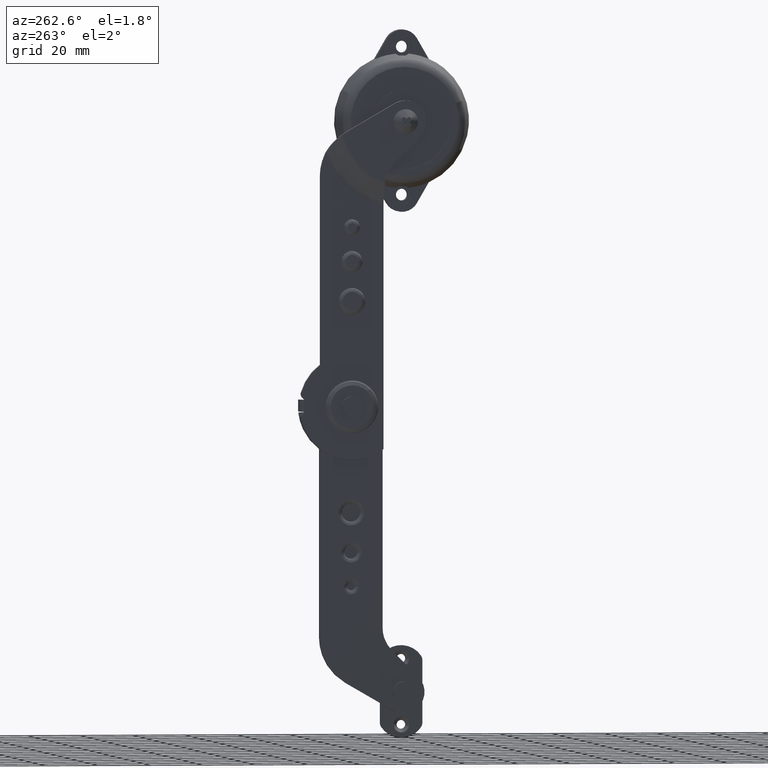
[diagram: clean part render]
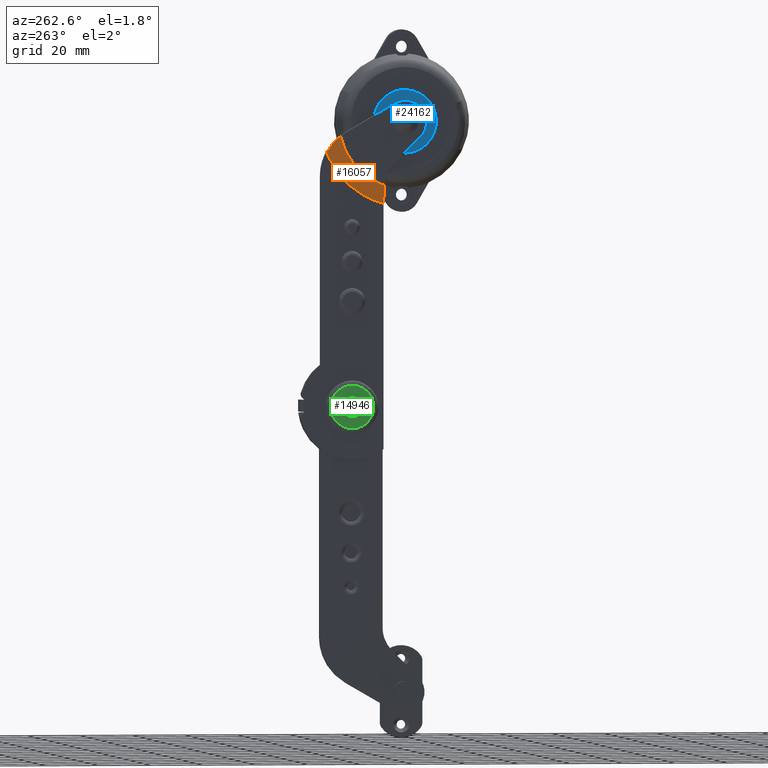
[diagram: same view with three faces highlighted in distinct colors, each labeled with its STEP entity id]
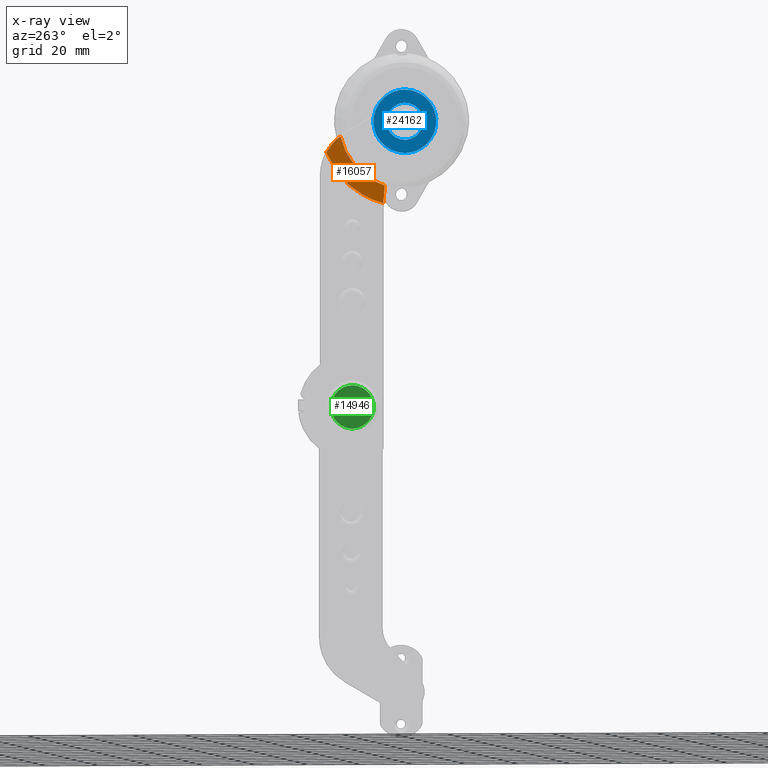
[diagram: x-ray of the same camera — body ghosted, the three highlighted faces saturated]
A machine part, auxiliary view with three faces highlighted in distinct colors.
The next image is the same camera in x-ray (body ghosted, the three faces saturated) — at least one of them is partly hidden behind the body in this view.
Their STEP definitions:

[orange] entity #16057 — the highlighted face is a freeform B-spline surface patch.
#15532=CARTESIAN_POINT('',(-5.736486284248669,4.863128088838000,102.514111724720190));
#15533=VERTEX_POINT('',#15532);
#15547=CARTESIAN_POINT('',(-5.736486284248739,-12.000487781645480,83.828158680001295));
#15548=VERTEX_POINT('',#15547);
#15549=CARTESIAN_POINT('',(-5.736486284248650,4.863128088838022,102.514111724720190));
#15550=CARTESIAN_POINT('',(-5.736486284248650,1.743809319493125,88.376743586616570));
#15551=CARTESIAN_POINT('',(-5.736486284248650,-12.000487781645480,83.828158680001295));
#15559=(BOUNDED_CURVE()B_SPLINE_CURVE(2,(#15549,#15550,#15551),.UNSPECIFIED.,.F.,.U.)CURVE()GEOMETRIC_REPRESENTATION_ITEM()QUASI_UNIFORM_CURVE()RATIONAL_B_SPLINE_CURVE((1.0,0.869297465460706,1.0))REPRESENTATION_ITEM(''));
#15560=EDGE_CURVE('',#15533,#15548,#15559,.T.);
#15692=CARTESIAN_POINT('',(-5.677690264437961,-12.0,83.719962000000095));
#15693=VERTEX_POINT('',#15692);
#15699=CARTESIAN_POINT('',(-1.999999999999895,-11.999999999999600,77.016133230340614));
#15700=VERTEX_POINT('',#15699);
#15701=CARTESIAN_POINT('',(-5.677690264437961,-12.0,83.719962000000095));
#15702=CARTESIAN_POINT('',(-4.461948262280271,-11.999999999999600,81.479902104427453));
#15703=CARTESIAN_POINT('',(-3.233967052708433,-11.999999999999609,79.246395691298105));
#15704=CARTESIAN_POINT('',(-1.999999999999893,-11.999999999999609,77.016133230340628));
#15705=QUASI_UNIFORM_CURVE('',3,(#15701,#15702,#15703,#15704),.UNSPECIFIED.,.F.,.U.);
#15706=EDGE_CURVE('',#15693,#15700,#15705,.T.);
#15730=CARTESIAN_POINT('',(-5.677690264437961,-12.0,83.719962000000095));
#15731=CARTESIAN_POINT('',(-5.697271404937943,-11.999999999999989,83.756041141351744));
#15732=CARTESIAN_POINT('',(-5.716870014381894,-12.000162710020939,83.792106733380848));
#15733=CARTESIAN_POINT('',(-5.736486284248731,-12.000487781645591,83.828158680001295));
#15734=QUASI_UNIFORM_CURVE('',3,(#15730,#15731,#15732,#15733),.UNSPECIFIED.,.F.,.U.);
#15735=EDGE_CURVE('',#15693,#15548,#15734,.T.);
#15946=CARTESIAN_POINT('',(-1.999999999999825,9.795297129198499,96.327799308493312));
#15947=VERTEX_POINT('',#15946);
#15961=CARTESIAN_POINT('',(-1.999999999999827,9.795297129198467,96.327799308493269));
#15962=CARTESIAN_POINT('',(-2.292714323731850,9.483363388380450,96.935897457616363));
#15963=CARTESIAN_POINT('',(-2.589181289130669,9.144610856385798,97.519735497039520));
#15964=CARTESIAN_POINT('',(-3.190899492959475,8.417368433482308,98.641299036198546));
#15965=CARTESIAN_POINT('',(-3.496148150604005,8.028864882781731,99.179014937678133));
#15966=CARTESIAN_POINT('',(-4.116845547879970,7.204470162349771,100.209388527240800));
#15967=CARTESIAN_POINT('',(-4.432291318735617,6.768572400459301,100.702042641400500));
#15968=CARTESIAN_POINT('',(-5.075022276520461,5.850527813168181,101.642218165126100));
#15969=CARTESIAN_POINT('',(-5.402303590090484,5.368379475857493,102.089740715282800));
#15970=CARTESIAN_POINT('',(-5.736486284248679,4.863128088837949,102.514111724720100));
#15971=B_SPLINE_CURVE_WITH_KNOTS('',3,(#15961,#15962,#15963,#15964,#15965,#15966,#15967,#15968,#15969,#15970),.UNSPECIFIED.,.F.,.U.,(4,2,2,2,4),(0.0,0.250000000000000,0.500000000000000,0.750000000000000,1.0),.UNSPECIFIED.);
#15972=EDGE_CURVE('',#15947,#15533,#15971,.T.);
#16024=CARTESIAN_POINT('',(-5.829898441354890,4.841894014696131,103.219539752954110));
#16025=CARTESIAN_POINT('',(-1.904252538965806,11.588000944691890,101.921349849153300));
#16026=CARTESIAN_POINT('',(-5.829898441354954,1.640728462722296,86.584527378409064));
#16027=CARTESIAN_POINT('',(-1.904252538965885,7.517521438578352,80.768905261344031));
#16028=CARTESIAN_POINT('',(-5.829898441354969,-14.959879356122794,83.209484025012230));
#16029=CARTESIAN_POINT('',(-1.904252538965903,-13.591175633952629,76.477329402739741));
#16037=(BOUNDED_SURFACE()B_SPLINE_SURFACE(1,2,((#16024,#16026,#16028),(#16025,#16027,#16029)),.UNSPECIFIED.,.F.,.F.,.U.)B_SPLINE_SURFACE_WITH_KNOTS((2,2),(3,3),(0.0,7.912392273403238),(0.0,39.102397179111193),.UNSPECIFIED.)GEOMETRIC_REPRESENTATION_ITEM()RATIONAL_B_SPLINE_SURFACE(((1.0,0.830062819234507,0.997961803269860),(1.0,0.830062819234507,0.997961803269860)))REPRESENTATION_ITEM('')SURFACE());
#16038=ORIENTED_EDGE('',*,*,#15972,.F.);
#16039=CARTESIAN_POINT('',(-1.999999999999780,9.795297129198490,96.327799308493312));
#16040=CARTESIAN_POINT('',(-1.999999999999780,3.831337079326949,81.103766887435711));
#16041=CARTESIAN_POINT('',(-1.999999999999780,-11.999999999999600,77.016133230340628));
#16049=(BOUNDED_CURVE()B_SPLINE_CURVE(2,(#16039,#16040,#16041),.UNSPECIFIED.,.F.,.U.)CURVE()GEOMETRIC_REPRESENTATION_ITEM()QUASI_UNIFORM_CURVE()RATIONAL_B_SPLINE_CURVE((1.0,0.890491297027661,1.0))REPRESENTATION_ITEM(''));
#16050=EDGE_CURVE('',#15947,#15700,#16049,.T.);
#16051=ORIENTED_EDGE('',*,*,#16050,.T.);
#16052=ORIENTED_EDGE('',*,*,#15706,.F.);
#16053=ORIENTED_EDGE('',*,*,#15735,.T.);
#16054=ORIENTED_EDGE('',*,*,#15560,.F.);
#16055=EDGE_LOOP('',(#16038,#16051,#16052,#16053,#16054));
#16056=FACE_OUTER_BOUND('',#16055,.T.);
#16057=ADVANCED_FACE('',(#16056),#16037,.T.);

[blue] entity #24162 — the highlighted face is a freeform B-spline surface patch.
#21796=CARTESIAN_POINT('',(-3.199999999999581,-8.036991995251439,107.058490850643200));
#21797=VERTEX_POINT('',#21796);
#21803=CARTESIAN_POINT('',(-3.199999999999581,-19.999999999999449,119.999999999999500));
#21804=VERTEX_POINT('',#21803);
#21805=CARTESIAN_POINT('',(-3.199999999999580,-8.036991995251420,107.058490850643250));
#21806=CARTESIAN_POINT('',(-3.199999999999581,-7.999999999999950,107.528518715595200));
#21807=CARTESIAN_POINT('',(-3.199999999999581,-7.999999999999950,108.0));
#21808=CARTESIAN_POINT('',(-3.199999999999580,-7.999999999999952,119.999999999999490));
#21809=CARTESIAN_POINT('',(-3.199999999999581,-19.999999999999449,119.999999999999500));
#21817=(BOUNDED_CURVE()B_SPLINE_CURVE(2,(#21805,#21806,#21807,#21808,#21809),.UNSPECIFIED.,.F.,.U.)B_SPLINE_CURVE_WITH_KNOTS((3,2,3),(0.736331300623844,0.750000000000000,1.0),.UNSPECIFIED.)CURVE()GEOMETRIC_REPRESENTATION_ITEM()RATIONAL_B_SPLINE_CURVE((0.969723356153195,0.983986122570897,1.0,0.707106781186548,1.0))REPRESENTATION_ITEM(''));
#21818=EDGE_CURVE('',#21797,#21804,#21817,.T.);
#21820=CARTESIAN_POINT('',(-3.199999999999581,-31.963008004747419,108.941509149357800));
#21821=VERTEX_POINT('',#21820);
#21822=CARTESIAN_POINT('',(-3.199999999999581,-19.999999999999449,119.999999999999500));
#21823=CARTESIAN_POINT('',(-3.199999999999581,-31.092685899317406,119.999999999999500));
#21824=CARTESIAN_POINT('',(-3.199999999999580,-31.963008004747397,108.941509149357730));
#21832=(BOUNDED_CURVE()B_SPLINE_CURVE(2,(#21822,#21823,#21824),.UNSPECIFIED.,.F.,.U.)B_SPLINE_CURVE_WITH_KNOTS((3,3),(0.0,0.236331300623830),.UNSPECIFIED.)CURVE()GEOMETRIC_REPRESENTATION_ITEM()RATIONAL_B_SPLINE_CURVE((1.0,0.723120658615667,0.969723356153166))REPRESENTATION_ITEM(''));
#21833=EDGE_CURVE('',#21804,#21821,#21832,.T.);
#21879=CARTESIAN_POINT('',(-3.199999999999581,-19.999999999999449,96.000000000000497));
#21880=VERTEX_POINT('',#21879);
#21881=CARTESIAN_POINT('',(-3.199999999999581,-31.963008004747405,108.941509149357780));
#21882=CARTESIAN_POINT('',(-3.199999999999581,-31.999999999998945,108.471481284405260));
#21883=CARTESIAN_POINT('',(-3.199999999999581,-31.999999999998948,108.0));
#21884=CARTESIAN_POINT('',(-3.199999999999580,-31.999999999998948,96.000000000000483));
#21885=CARTESIAN_POINT('',(-3.199999999999581,-19.999999999999449,96.000000000000497));
#21893=(BOUNDED_CURVE()B_SPLINE_CURVE(2,(#21881,#21882,#21883,#21884,#21885),.UNSPECIFIED.,.F.,.U.)B_SPLINE_CURVE_WITH_KNOTS((3,2,3),(0.236331300623830,0.250000000000000,0.500000000000000),.UNSPECIFIED.)CURVE()GEOMETRIC_REPRESENTATION_ITEM()RATIONAL_B_SPLINE_CURVE((0.969723356153165,0.983986122570881,1.0,0.707106781186548,1.0))REPRESENTATION_ITEM(''));
#21894=EDGE_CURVE('',#21821,#21880,#21893,.T.);
#21896=CARTESIAN_POINT('',(-3.199999999999581,-19.999999999999449,96.000000000000497));
#21897=CARTESIAN_POINT('',(-3.199999999999580,-8.907314100680583,96.000000000000497));
#21898=CARTESIAN_POINT('',(-3.199999999999580,-8.036991995251418,107.058490850643280));
#21906=(BOUNDED_CURVE()B_SPLINE_CURVE(2,(#21896,#21897,#21898),.UNSPECIFIED.,.F.,.U.)B_SPLINE_CURVE_WITH_KNOTS((3,3),(0.500000000000000,0.736331300623844),.UNSPECIFIED.)CURVE()GEOMETRIC_REPRESENTATION_ITEM()RATIONAL_B_SPLINE_CURVE((1.0,0.723120658615650,0.969723356153195))REPRESENTATION_ITEM(''));
#21907=EDGE_CURVE('',#21880,#21797,#21906,.T.);
#22160=CARTESIAN_POINT('',(-3.199999999999601,-13.000266538561711,108.061085749794100));
#22161=VERTEX_POINT('',#22160);
#22167=CARTESIAN_POINT('',(-3.199999999999601,-19.999999999999400,101.000000000000100));
#22168=VERTEX_POINT('',#22167);
#22169=CARTESIAN_POINT('',(-3.199999999999601,-19.999999999999400,101.000000000000100));
#22170=CARTESIAN_POINT('',(-3.199999999999600,-12.999999999999519,101.000000000000130));
#22171=CARTESIAN_POINT('',(-3.199999999999601,-12.999999999999520,108.0));
#22172=CARTESIAN_POINT('',(-3.199999999999601,-12.999999999999522,108.030543456397690));
#22173=CARTESIAN_POINT('',(-3.199999999999601,-13.000266538561709,108.061085749794150));
#22181=(BOUNDED_CURVE()B_SPLINE_CURVE(2,(#22169,#22170,#22171,#22172,#22173),.UNSPECIFIED.,.F.,.U.)B_SPLINE_CURVE_WITH_KNOTS((3,2,3),(0.500000000000000,0.750000000000000,0.751539894367839),.UNSPECIFIED.)CURVE()GEOMETRIC_REPRESENTATION_ITEM()RATIONAL_B_SPLINE_CURVE((1.0,0.707106781186547,1.0,0.998195901527884,0.996414028024377))REPRESENTATION_ITEM(''));
#22182=EDGE_CURVE('',#22168,#22161,#22181,.T.);
#22184=CARTESIAN_POINT('',(-3.199999999999601,-26.999733461437089,107.938914250205900));
#22185=VERTEX_POINT('',#22184);
#22186=CARTESIAN_POINT('',(-3.199999999999600,-26.999733461437092,107.938914250205810));
#22187=CARTESIAN_POINT('',(-3.199999999999601,-26.939178472869852,101.000000000000130));
#22188=CARTESIAN_POINT('',(-3.199999999999601,-19.999999999999400,101.000000000000100));
#22196=(BOUNDED_CURVE()B_SPLINE_CURVE(2,(#22186,#22187,#22188),.UNSPECIFIED.,.F.,.U.)B_SPLINE_CURVE_WITH_KNOTS((3,3),(0.251539894367840,0.500000000000000),.UNSPECIFIED.)CURVE()GEOMETRIC_REPRESENTATION_ITEM()RATIONAL_B_SPLINE_CURVE((0.996414028024376,0.708910879658664,1.0))REPRESENTATION_ITEM(''));
#22197=EDGE_CURVE('',#22185,#22168,#22196,.T.);
#22243=CARTESIAN_POINT('',(-3.199999999999601,-19.999999999999400,114.999999999999900));
#22244=VERTEX_POINT('',#22243);
#22245=CARTESIAN_POINT('',(-3.199999999999601,-19.999999999999400,114.999999999999900));
#22246=CARTESIAN_POINT('',(-3.199999999999600,-26.999999999999289,114.999999999999900));
#22247=CARTESIAN_POINT('',(-3.199999999999601,-26.999999999999279,108.0));
#22248=CARTESIAN_POINT('',(-3.199999999999601,-26.999999999999286,107.969456543602310));
#22249=CARTESIAN_POINT('',(-3.199999999999600,-26.999733461437092,107.938914250205810));
#22257=(BOUNDED_CURVE()B_SPLINE_CURVE(2,(#22245,#22246,#22247,#22248,#22249),.UNSPECIFIED.,.F.,.U.)B_SPLINE_CURVE_WITH_KNOTS((3,2,3),(0.0,0.250000000000000,0.251539894367840),.UNSPECIFIED.)CURVE()GEOMETRIC_REPRESENTATION_ITEM()RATIONAL_B_SPLINE_CURVE((1.0,0.707106781186547,1.0,0.998195901527883,0.996414028024376))REPRESENTATION_ITEM(''));
#22258=EDGE_CURVE('',#22244,#22185,#22257,.T.);
#22260=CARTESIAN_POINT('',(-3.199999999999601,-13.000266538561716,108.061085749794120));
#22261=CARTESIAN_POINT('',(-3.199999999999599,-13.060821527128923,114.999999999999890));
#22262=CARTESIAN_POINT('',(-3.199999999999601,-19.999999999999400,114.999999999999900));
#22270=(BOUNDED_CURVE()B_SPLINE_CURVE(2,(#22260,#22261,#22262),.UNSPECIFIED.,.F.,.U.)B_SPLINE_CURVE_WITH_KNOTS((3,3),(0.751539894367839,1.0),.UNSPECIFIED.)CURVE()GEOMETRIC_REPRESENTATION_ITEM()RATIONAL_B_SPLINE_CURVE((0.996414028024377,0.708910879658664,1.0))REPRESENTATION_ITEM(''));
#22271=EDGE_CURVE('',#22161,#22244,#22270,.T.);
#24145=CARTESIAN_POINT('',(-3.199999999999601,-6.804862741983384,94.801200046517195));
#24146=CARTESIAN_POINT('',(-3.199999999999601,-6.804862741983384,121.198800597212990));
#24147=CARTESIAN_POINT('',(-3.199999999999601,-33.195137687168952,94.801200046517195));
#24148=CARTESIAN_POINT('',(-3.199999999999601,-33.195137687168952,121.198800597212990));
#24149=B_SPLINE_SURFACE_WITH_KNOTS('',1,1,((#24145,#24147),(#24146,#24148)),.UNSPECIFIED.,.F.,.F.,.U.,(2,2),(2,2),(0.0,26.397600550695770),(0.0,26.390274945185570),.UNSPECIFIED.);
#24150=ORIENTED_EDGE('',*,*,#21818,.F.);
#24151=ORIENTED_EDGE('',*,*,#21907,.F.);
#24152=ORIENTED_EDGE('',*,*,#21894,.F.);
#24153=ORIENTED_EDGE('',*,*,#21833,.F.);
#24154=EDGE_LOOP('',(#24150,#24151,#24152,#24153));
#24155=FACE_OUTER_BOUND('',#24154,.T.);
#24156=ORIENTED_EDGE('',*,*,#22182,.T.);
#24157=ORIENTED_EDGE('',*,*,#22271,.T.);
#24158=ORIENTED_EDGE('',*,*,#22258,.T.);
#24159=ORIENTED_EDGE('',*,*,#22197,.T.);
#24160=EDGE_LOOP('',(#24156,#24157,#24158,#24159));
#24161=FACE_BOUND('',#24160,.T.);
#24162=ADVANCED_FACE('',(#24155,#24161),#24149,.F.);

[green] entity #14946 — the highlighted face is a freeform B-spline surface patch.
#12652=CARTESIAN_POINT('',(-3.0,2.549902903796574,-0.022252667475778));
#12653=VERTEX_POINT('',#12652);
#12659=CARTESIAN_POINT('',(-3.0,0.0,-2.549999999999705));
#12660=VERTEX_POINT('',#12659);
#12661=CARTESIAN_POINT('',(-3.0,0.0,-2.549999999999705));
#12662=CARTESIAN_POINT('',(-3.000000000000001,2.527843585078816,-2.549999999999705));
#12663=CARTESIAN_POINT('',(-3.000000000000000,2.549902903796574,-0.022252667475778));
#12671=(BOUNDED_CURVE()B_SPLINE_CURVE(2,(#12661,#12662,#12663),.UNSPECIFIED.,.F.,.U.)B_SPLINE_CURVE_WITH_KNOTS((3,3),(0.500000000000000,0.748460105529950),.UNSPECIFIED.)CURVE()GEOMETRIC_REPRESENTATION_ITEM()RATIONAL_B_SPLINE_CURVE((1.0,0.708910879778412,0.996414027787832))REPRESENTATION_ITEM(''));
#12672=EDGE_CURVE('',#12660,#12653,#12671,.T.);
#12674=CARTESIAN_POINT('',(-3.0,-2.549902903796574,0.022252667476368));
#12675=VERTEX_POINT('',#12674);
#12676=CARTESIAN_POINT('',(-3.000000000000000,-2.549902903796574,0.022252667476368));
#12677=CARTESIAN_POINT('',(-2.999999999999999,-2.549999999999999,0.011126545570750));
#12678=CARTESIAN_POINT('',(-3.0,-2.550000000000000,2.952824E-013));
#12679=CARTESIAN_POINT('',(-3.0,-2.549999999999999,-2.549999999999705));
#12680=CARTESIAN_POINT('',(-3.0,0.0,-2.549999999999705));
#12688=(BOUNDED_CURVE()B_SPLINE_CURVE(2,(#12676,#12677,#12678,#12679,#12680),.UNSPECIFIED.,.F.,.U.)B_SPLINE_CURVE_WITH_KNOTS((3,2,3),(0.248460105529950,0.250000000000000,0.500000000000000),.UNSPECIFIED.)CURVE()GEOMETRIC_REPRESENTATION_ITEM()RATIONAL_B_SPLINE_CURVE((0.996414027787832,0.998195901408136,1.0,0.707106781186548,1.0))REPRESENTATION_ITEM(''));
#12689=EDGE_CURVE('',#12675,#12660,#12688,.T.);
#12765=CARTESIAN_POINT('',(-3.0,0.0,2.550000000000296));
#12766=VERTEX_POINT('',#12765);
#12767=CARTESIAN_POINT('',(-3.0,0.0,2.550000000000296));
#12768=CARTESIAN_POINT('',(-3.000000000000001,-2.527843585078816,2.550000000000297));
#12769=CARTESIAN_POINT('',(-3.000000000000000,-2.549902903796574,0.022252667476368));
#12777=(BOUNDED_CURVE()B_SPLINE_CURVE(2,(#12767,#12768,#12769),.UNSPECIFIED.,.F.,.U.)B_SPLINE_CURVE_WITH_KNOTS((3,3),(0.0,0.248460105529950),.UNSPECIFIED.)CURVE()GEOMETRIC_REPRESENTATION_ITEM()RATIONAL_B_SPLINE_CURVE((1.0,0.708910879778412,0.996414027787832))REPRESENTATION_ITEM(''));
#12778=EDGE_CURVE('',#12766,#12675,#12777,.T.);
#12780=CARTESIAN_POINT('',(-3.000000000000000,2.549902903796574,-0.022252667475778));
#12781=CARTESIAN_POINT('',(-2.999999999999999,2.549999999999999,-0.011126545570159));
#12782=CARTESIAN_POINT('',(-3.0,2.550000000000000,2.952824E-013));
#12783=CARTESIAN_POINT('',(-3.0,2.549999999999999,2.550000000000295));
#12784=CARTESIAN_POINT('',(-3.0,0.0,2.550000000000296));
#12792=(BOUNDED_CURVE()B_SPLINE_CURVE(2,(#12780,#12781,#12782,#12783,#12784),.UNSPECIFIED.,.F.,.U.)B_SPLINE_CURVE_WITH_KNOTS((3,2,3),(0.748460105529950,0.750000000000000,1.0),.UNSPECIFIED.)CURVE()GEOMETRIC_REPRESENTATION_ITEM()RATIONAL_B_SPLINE_CURVE((0.996414027787832,0.998195901408136,1.0,0.707106781186548,1.0))REPRESENTATION_ITEM(''));
#12793=EDGE_CURVE('',#12653,#12766,#12792,.T.);
#14516=CARTESIAN_POINT('',(-3.000000000000024,5.668238560962764,-5.886057712507089));
#14517=VERTEX_POINT('',#14516);
#14531=CARTESIAN_POINT('',(-3.000000000000028,1.136868E-013,8.171572875253800));
#14532=VERTEX_POINT('',#14531);
#14533=CARTESIAN_POINT('',(-3.000000000000028,1.136868E-013,8.171572875253800));
#14534=CARTESIAN_POINT('',(-3.000000000000004,8.171572879732247,8.171572870603363));
#14535=CARTESIAN_POINT('',(-3.000000000000017,8.171572890838849,-0.000000016183834));
#14536=CARTESIAN_POINT('',(-3.000000000000023,8.171572895562477,-3.475361636821903));
#14537=CARTESIAN_POINT('',(-3.000000000000024,5.668238560962764,-5.886057712507088));
#14545=(BOUNDED_CURVE()B_SPLINE_CURVE(2,(#14533,#14534,#14535,#14536,#14537),.UNSPECIFIED.,.F.,.U.)B_SPLINE_CURVE_WITH_KNOTS((3,2,3),(0.0,0.250000000000000,0.377844262559069),.UNSPECIFIED.)CURVE()GEOMETRIC_REPRESENTATION_ITEM()RATIONAL_B_SPLINE_CURVE((1.0,0.707106781186548,1.0,0.850221129728968,0.853629213191781))REPRESENTATION_ITEM(''));
#14546=EDGE_CURVE('',#14532,#14517,#14545,.T.);
#14548=CARTESIAN_POINT('',(-3.000000000000003,-5.668238560962535,5.886057712507110));
#14549=VERTEX_POINT('',#14548);
#14550=CARTESIAN_POINT('',(-3.000000000000003,-5.668238560962536,5.886057712507110));
#14551=CARTESIAN_POINT('',(-3.000000000000015,-3.294895554174925,8.171572886787207));
#14552=CARTESIAN_POINT('',(-3.000000000000028,1.136868E-013,8.171572875253800));
#14560=(BOUNDED_CURVE()B_SPLINE_CURVE(2,(#14550,#14551,#14552),.UNSPECIFIED.,.F.,.U.)B_SPLINE_CURVE_WITH_KNOTS((3,3),(0.877844262559069,1.0),.UNSPECIFIED.)CURVE()GEOMETRIC_REPRESENTATION_ITEM()RATIONAL_B_SPLINE_CURVE((0.853629213191781,0.856885651457579,1.0))REPRESENTATION_ITEM(''));
#14561=EDGE_CURVE('',#14549,#14532,#14560,.T.);
#14613=CARTESIAN_POINT('',(-3.0,1.136868E-013,-8.171572875253780));
#14614=VERTEX_POINT('',#14613);
#14615=CARTESIAN_POINT('',(-3.0,1.136868E-013,-8.171572875253780));
#14616=CARTESIAN_POINT('',(-3.0,-8.171572879732018,-8.171572870603347));
#14617=CARTESIAN_POINT('',(-3.000000000000002,-8.171572890838622,0.000000016183854));
#14618=CARTESIAN_POINT('',(-3.000000000000002,-8.171572895562250,3.475361636821924));
#14619=CARTESIAN_POINT('',(-3.000000000000003,-5.668238560962536,5.886057712507110));
#14627=(BOUNDED_CURVE()B_SPLINE_CURVE(2,(#14615,#14616,#14617,#14618,#14619),.UNSPECIFIED.,.F.,.U.)B_SPLINE_CURVE_WITH_KNOTS((3,2,3),(0.500000000000000,0.750000000000000,0.877844262559069),.UNSPECIFIED.)CURVE()GEOMETRIC_REPRESENTATION_ITEM()RATIONAL_B_SPLINE_CURVE((1.0,0.707106781186548,1.0,0.850221129728968,0.853629213191781))REPRESENTATION_ITEM(''));
#14628=EDGE_CURVE('',#14614,#14549,#14627,.T.);
#14630=CARTESIAN_POINT('',(-3.000000000000024,5.668238560962764,-5.886057712507088));
#14631=CARTESIAN_POINT('',(-3.000000000000012,3.294895554175155,-8.171572886787189));
#14632=CARTESIAN_POINT('',(-3.0,1.136868E-013,-8.171572875253780));
#14640=(BOUNDED_CURVE()B_SPLINE_CURVE(2,(#14630,#14631,#14632),.UNSPECIFIED.,.F.,.U.)B_SPLINE_CURVE_WITH_KNOTS((3,3),(0.377844262559069,0.500000000000000),.UNSPECIFIED.)CURVE()GEOMETRIC_REPRESENTATION_ITEM()RATIONAL_B_SPLINE_CURVE((0.853629213191781,0.856885651457579,1.0))REPRESENTATION_ITEM(''));
#14641=EDGE_CURVE('',#14517,#14614,#14640,.T.);
#14929=CARTESIAN_POINT('',(-3.0,8.987202731922572,-8.987912973815446));
#14930=CARTESIAN_POINT('',(-3.0,8.987202731922571,8.987913412172793));
#14931=CARTESIAN_POINT('',(-3.0,-8.987202585856455,-8.987912973815446));
#14932=CARTESIAN_POINT('',(-3.0,-8.987202585856455,8.987913412172793));
#14933=B_SPLINE_SURFACE_WITH_KNOTS('',1,1,((#14929,#14931),(#14930,#14932)),.UNSPECIFIED.,.F.,.F.,.U.,(2,2),(2,2),(0.0,17.975826385988238),(0.0,17.974405317779031),.UNSPECIFIED.);
#14934=ORIENTED_EDGE('',*,*,#14546,.T.);
#14935=ORIENTED_EDGE('',*,*,#14641,.T.);
#14936=ORIENTED_EDGE('',*,*,#14628,.T.);
#14937=ORIENTED_EDGE('',*,*,#14561,.T.);
#14938=EDGE_LOOP('',(#14934,#14935,#14936,#14937));
#14939=FACE_OUTER_BOUND('',#14938,.T.);
#14940=ORIENTED_EDGE('',*,*,#12778,.T.);
#14941=ORIENTED_EDGE('',*,*,#12689,.T.);
#14942=ORIENTED_EDGE('',*,*,#12672,.T.);
#14943=ORIENTED_EDGE('',*,*,#12793,.T.);
#14944=EDGE_LOOP('',(#14940,#14941,#14942,#14943));
#14945=FACE_BOUND('',#14944,.T.);
#14946=ADVANCED_FACE('',(#14939,#14945),#14933,.F.);